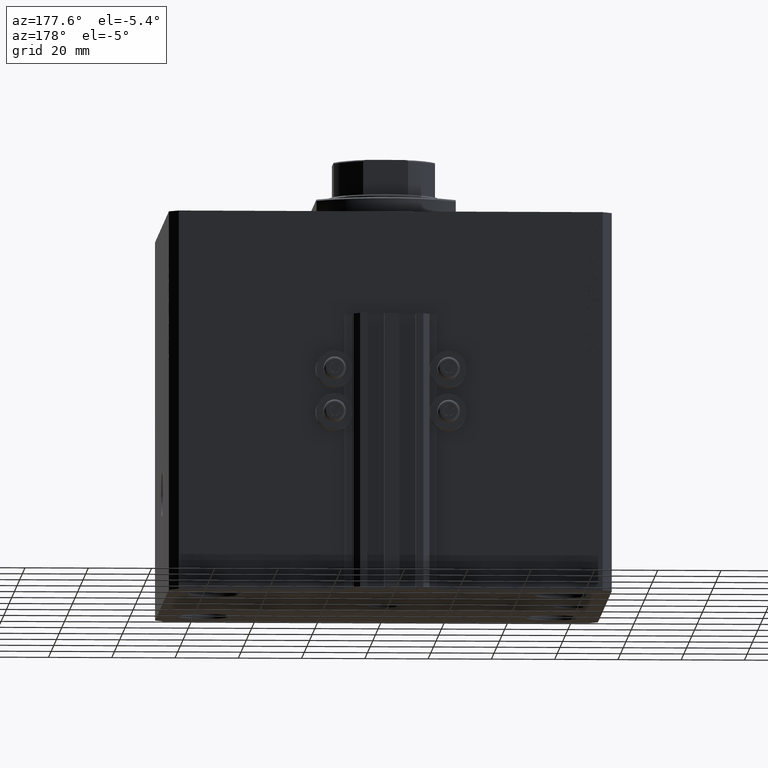
[diagram: clean part render]
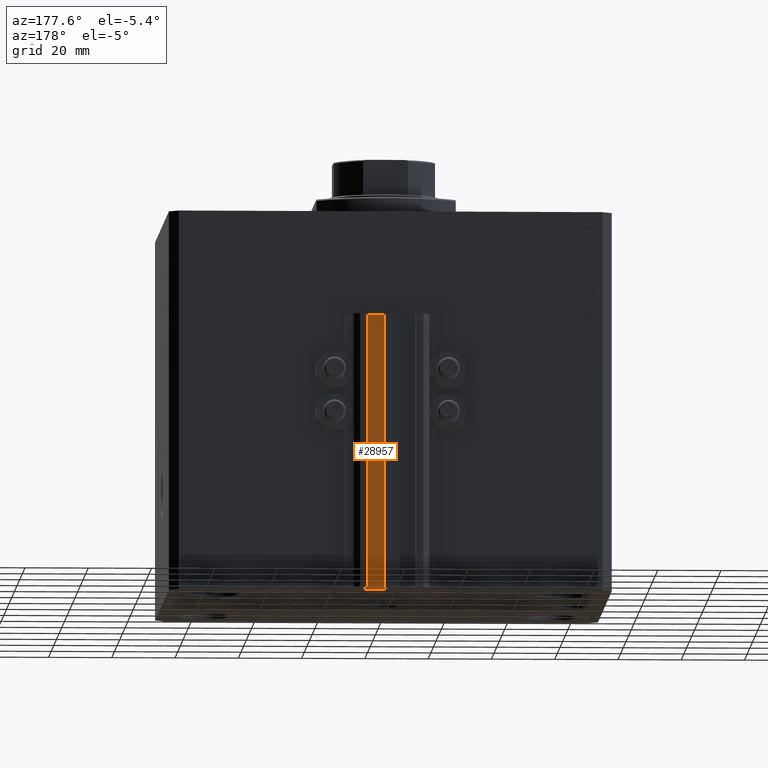
[diagram: same view with one face highlighted and labeled with its STEP entity id]
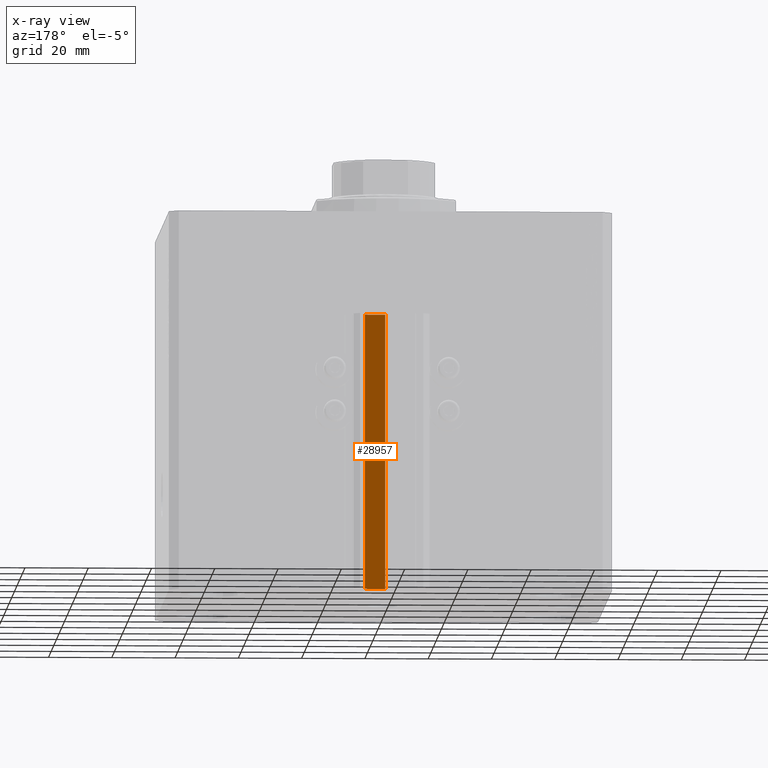
[diagram: x-ray of the same camera — body ghosted, the highlighted face saturated]
A machine part, auxiliary view. The second image highlights one B-rep face of the part: STEP entity #28957.
The next image is the same camera in x-ray: the body ghosted, the highlighted face saturated — about 0% of this face is hidden behind the body in this view.
In plain terms, the highlighted planar face has unit normal (0, 1, 0).
Its self-contained STEP definition (entity closure, byte-faithful):
#3803 = VECTOR ( 'NONE', #39231, 1000.000000000000000 ) ;
#6419 = LINE ( 'NONE', #28691, #3803 ) ;
#9462 = EDGE_LOOP ( 'NONE', ( #45489, #39193, #21769, #14729 ) ) ;
#10987 = VERTEX_POINT ( 'NONE', #18677 ) ;
#11358 = CARTESIAN_POINT ( 'NONE',  ( 8.199999999999999289, 57.00000000000000000, -120.0000000000000000 ) ) ;
#12477 = VECTOR ( 'NONE', #41318, 1000.000000000000000 ) ;
#14729 = ORIENTED_EDGE ( 'NONE', *, *, #35946, .T. ) ;
#14769 = VECTOR ( 'NONE', #38022, 1000.000000000000000 ) ;
#15488 = VECTOR ( 'NONE', #30198, 1000.000000000000000 ) ;
#18670 = VERTEX_POINT ( 'NONE', #39806 ) ;
#18677 = CARTESIAN_POINT ( 'NONE',  ( 1.800000000000000933, 57.00000000000000711, -33.00000000000000000 ) ) ;
#19160 = LINE ( 'NONE', #42571, #15488 ) ;
#20011 = PLANE ( 'NONE',  #36694 ) ;
#21769 = ORIENTED_EDGE ( 'NONE', *, *, #28747, .T. ) ;
#23364 = FACE_OUTER_BOUND ( 'NONE', #9462, .T. ) ;
#27921 = DIRECTION ( 'NONE',  ( 0.000000000000000000, 0.000000000000000000, 1.000000000000000000 ) ) ;
#28691 = CARTESIAN_POINT ( 'NONE',  ( 8.199999999999999289, 57.00000000000000711, -120.0000000000000000 ) ) ;
#28747 = EDGE_CURVE ( 'NONE', #47250, #18670, #6419, .T. ) ;
#28957 = ADVANCED_FACE ( 'NONE', ( #23364 ), #20011, .T. ) ;
#30198 = DIRECTION ( 'NONE',  ( 0.000000000000000000, 0.000000000000000000, 1.000000000000000000 ) ) ;
#30538 = LINE ( 'NONE', #46074, #12477 ) ;
#31514 = DIRECTION ( 'NONE',  ( 0.000000000000000000, 1.000000000000000000, -0.000000000000000000 ) ) ;
#34950 = CARTESIAN_POINT ( 'NONE',  ( 8.199999999999999289, 57.00000000000000000, -33.00000000000000000 ) ) ;
#35946 = EDGE_CURVE ( 'NONE', #18670, #10987, #19160, .T. ) ;
#36694 = AXIS2_PLACEMENT_3D ( 'NONE', #41820, #31514, #27921 ) ;
#38022 = DIRECTION ( 'NONE',  ( -1.000000000000000000, 0.000000000000000000, 0.000000000000000000 ) ) ;
#38491 = CARTESIAN_POINT ( 'NONE',  ( 8.199999999999999289, 57.00000000000000711, -33.00000000000000000 ) ) ;
#39193 = ORIENTED_EDGE ( 'NONE', *, *, #41700, .F. ) ;
#39231 = DIRECTION ( 'NONE',  ( -1.000000000000000000, 0.000000000000000000, 0.000000000000000000 ) ) ;
#39806 = CARTESIAN_POINT ( 'NONE',  ( 1.800000000000000933, 57.00000000000000711, -120.0000000000000000 ) ) ;
#41318 = DIRECTION ( 'NONE',  ( 0.000000000000000000, 0.000000000000000000, 1.000000000000000000 ) ) ;
#41368 = EDGE_CURVE ( 'NONE', #45339, #10987, #46135, .T. ) ;
#41700 = EDGE_CURVE ( 'NONE', #47250, #45339, #30538, .T. ) ;
#41820 = CARTESIAN_POINT ( 'NONE',  ( 8.199999999999999289, 57.00000000000000711, -120.0000000000000000 ) ) ;
#42571 = CARTESIAN_POINT ( 'NONE',  ( 1.800000000000000933, 57.00000000000000711, -120.0000000000000000 ) ) ;
#45339 = VERTEX_POINT ( 'NONE', #34950 ) ;
#45489 = ORIENTED_EDGE ( 'NONE', *, *, #41368, .F. ) ;
#46074 = CARTESIAN_POINT ( 'NONE',  ( 8.199999999999999289, 57.00000000000000000, -120.0000000000000000 ) ) ;
#46135 = LINE ( 'NONE', #38491, #14769 ) ;
#47250 = VERTEX_POINT ( 'NONE', #11358 ) ;